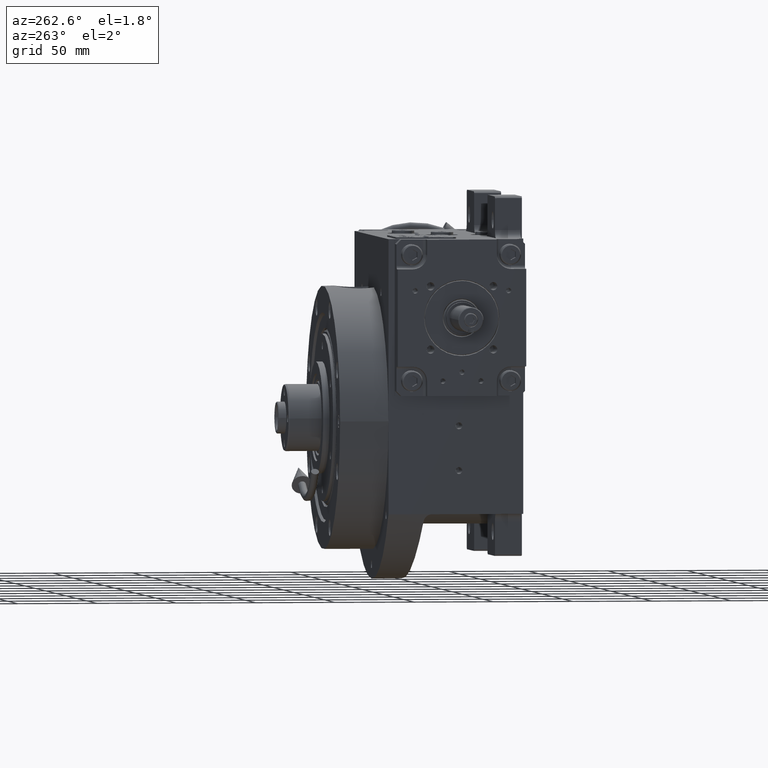
[diagram: clean part render]
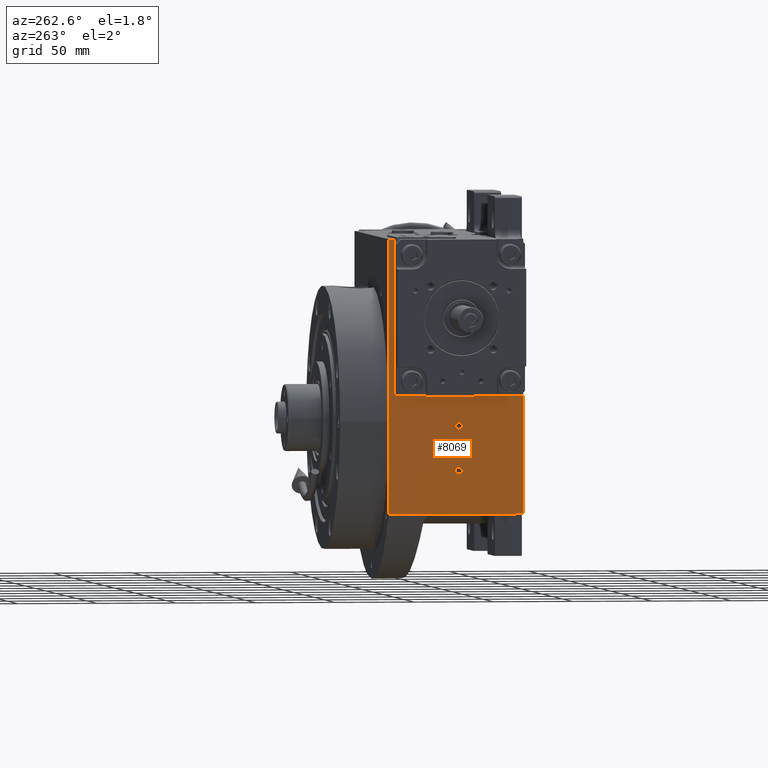
[diagram: same view with one face highlighted and labeled with its STEP entity id]
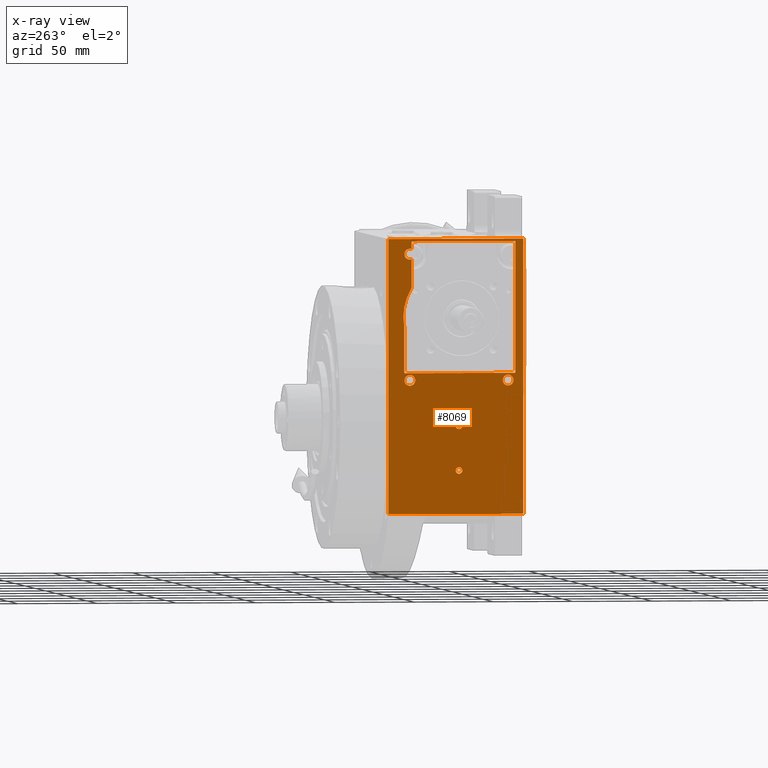
[diagram: x-ray of the same camera — body ghosted, the highlighted face saturated]
A machine part, auxiliary view. The second image highlights one B-rep face of the part: STEP entity #8069.
The next image is the same camera in x-ray: the body ghosted, the highlighted face saturated — about 0% of this face is hidden behind the body in this view.
In plain terms, the highlighted planar face has unit normal (-1, 0, 0).
Its self-contained STEP definition (entity closure, byte-faithful):
#206 = AXIS2_PLACEMENT_3D ( 'NONE', #1415, #22826, #28451 ) ;
#308 = EDGE_CURVE ( 'NONE', #10086, #66945, #552, .T. ) ;
#315 = VERTEX_POINT ( 'NONE', #21269 ) ;
#381 = DIRECTION ( 'NONE',  ( 1.000000000000000000, 0.000000000000000000, 0.000000000000000000 ) ) ;
#552 = LINE ( 'NONE', #17051, #4490 ) ;
#650 = CARTESIAN_POINT ( 'NONE',  ( -82.50001592521240923, 35.09186693465589713, 64.99999953009830733 ) ) ;
#972 = CARTESIAN_POINT ( 'NONE',  ( -82.50000000000000000, -2.100000000000000089, -31.00000000000000000 ) ) ;
#1000 = CARTESIAN_POINT ( 'NONE',  ( -82.50000000000000000, 32.80572396550898873, 77.48509901644604270 ) ) ;
#1415 = CARTESIAN_POINT ( 'NONE',  ( -82.50000000000000000, -31.00000000000000000, 25.50000000000000000 ) ) ;
#1640 = LINE ( 'NONE', #44443, #18783 ) ;
#1911 = EDGE_CURVE ( 'NONE', #4711, #28801, #49567, .T. ) ;
#2588 = CARTESIAN_POINT ( 'NONE',  ( -82.50001592521240923, 35.09186693465589713, 64.99999953009830733 ) ) ;
#2748 = VECTOR ( 'NONE', #33037, 1000.000000000000000 ) ;
#2792 = VERTEX_POINT ( 'NONE', #47744 ) ;
#2962 = VERTEX_POINT ( 'NONE', #28755 ) ;
#3058 = CARTESIAN_POINT ( 'NONE',  ( -82.50000000000000000, 31.55988692801944140, 80.42704711008519780 ) ) ;
#3095 = B_SPLINE_CURVE_WITH_KNOTS ( 'NONE', 3,
 ( #29268, #61583, #45070, #2588 ),
 .UNSPECIFIED., .F., .F.,
 ( 4, 4 ),
 ( 0.9414611157516371565, 1.000000000000000000 ),
 .UNSPECIFIED. ) ;
#3339 = EDGE_LOOP ( 'NONE', ( #8384, #49380 ) ) ;
#3483 = AXIS2_PLACEMENT_3D ( 'NONE', #64433, #9292, #37353 ) ;
#3504 = VECTOR ( 'NONE', #48311, 1000.000000000000000 ) ;
#3514 = AXIS2_PLACEMENT_3D ( 'NONE', #24507, #35057, #4390 ) ;
#4003 = CARTESIAN_POINT ( 'NONE',  ( -82.50000000000000000, 44.50000000000000000, -58.26448317800490173 ) ) ;
#4373 = ORIENTED_EDGE ( 'NONE', *, *, #28653, .T. ) ;
#4390 = DIRECTION ( 'NONE',  ( 0.000000000000000000, -1.000000000000000000, -8.260587980841937794E-16 ) ) ;
#4490 = VECTOR ( 'NONE', #10746, 1000.000000000000000 ) ;
#4695 = CARTESIAN_POINT ( 'NONE',  ( -82.50000000000000000, -1.693856052458800887, 29.93856829000442588 ) ) ;
#4711 = VERTEX_POINT ( 'NONE', #21174 ) ;
#5017 = AXIS2_PLACEMENT_3D ( 'NONE', #49877, #381, #22117 ) ;
#5773 = DIRECTION ( 'NONE',  ( 0.000000000000000000, 1.000000000000000000, 8.260587980841937794E-16 ) ) ;
#6124 = CARTESIAN_POINT ( 'NONE',  ( -82.49999999999998579, 2.536110580017596927, 29.99973809517230094 ) ) ;
#6132 = VECTOR ( 'NONE', #49922, 1000.000000000000000 ) ;
#7179 = CARTESIAN_POINT ( 'NONE',  ( -82.50000000000000000, -40.50000000000000000, -58.26448317800490173 ) ) ;
#7362 = EDGE_CURVE ( 'NONE', #68040, #48719, #42694, .T. ) ;
#7508 = VECTOR ( 'NONE', #46836, 1000.000000000000000 ) ;
#7758 = EDGE_CURVE ( 'NONE', #28801, #34693, #47198, .T. ) ;
#8066 = EDGE_CURVE ( 'NONE', #16380, #64120, #3095, .T. ) ;
#8069 = ADVANCED_FACE ( 'NONE', ( #23652, #19410, #39773, #56652, #8512, #66521 ), #24000, .T. ) ;
#8384 = ORIENTED_EDGE ( 'NONE', *, *, #63031, .T. ) ;
#8512 = FACE_BOUND ( 'NONE', #24115, .T. ) ;
#8627 = ORIENTED_EDGE ( 'NONE', *, *, #308, .T. ) ;
#8959 = VERTEX_POINT ( 'NONE', #61832 ) ;
#9292 = DIRECTION ( 'NONE',  ( 1.000000000000000000, 0.000000000000000000, 0.000000000000000000 ) ) ;
#10086 = VERTEX_POINT ( 'NONE', #42153 ) ;
#10556 = ORIENTED_EDGE ( 'NONE', *, *, #39730, .T. ) ;
#10746 = DIRECTION ( 'NONE',  ( 0.000000000000000000, 1.000000000000000000, 0.000000000000000000 ) ) ;
#10759 = DIRECTION ( 'NONE',  ( 0.000000000000000000, -1.000000000000000000, 0.000000000000000000 ) ) ;
#11323 = CARTESIAN_POINT ( 'NONE',  ( -82.50000000000000000, 31.00000000000000000, 25.50000000000000000 ) ) ;
#11542 = CARTESIAN_POINT ( 'NONE',  ( -82.50000000000002842, 34.19718383853266630, 72.91221821827716099 ) ) ;
#11612 = LINE ( 'NONE', #66059, #36879 ) ;
#12831 = DIRECTION ( 'NONE',  ( 0.000000000000000000, 1.000000000000000000, 0.000000000000000000 ) ) ;
#12930 = EDGE_CURVE ( 'NONE', #28498, #13760, #48740, .T. ) ;
#13134 = CARTESIAN_POINT ( 'NONE',  ( -82.50000000000000000, 0.000000000000000000, -31.00000000000000000 ) ) ;
#13157 = EDGE_CURVE ( 'NONE', #15352, #2962, #21874, .T. ) ;
#13247 = EDGE_CURVE ( 'NONE', #2792, #16380, #38994, .T. ) ;
#13356 = EDGE_LOOP ( 'NONE', ( #60456, #33057, #8627, #44204, #15165 ) ) ;
#13760 = VERTEX_POINT ( 'NONE', #41943 ) ;
#13847 = ORIENTED_EDGE ( 'NONE', *, *, #30304, .T. ) ;
#14003 = AXIS2_PLACEMENT_3D ( 'NONE', #55620, #65810, #39445 ) ;
#14348 = CARTESIAN_POINT ( 'NONE',  ( -82.50000000000000000, 34.39999999999999858, 104.5000000000000000 ) ) ;
#14352 = EDGE_CURVE ( 'NONE', #53867, #42424, #27584, .T. ) ;
#14442 = LINE ( 'NONE', #26360, #50873 ) ;
#14543 = ORIENTED_EDGE ( 'NONE', *, *, #20760, .T. ) ;
#14968 = ORIENTED_EDGE ( 'NONE', *, *, #8066, .T. ) ;
#15165 = ORIENTED_EDGE ( 'NONE', *, *, #36271, .T. ) ;
#15352 = VERTEX_POINT ( 'NONE', #61356 ) ;
#15755 = CARTESIAN_POINT ( 'NONE',  ( -82.50000000000000000, 29.99999999930853178, -58.26448317829031964 ) ) ;
#16008 = CARTESIAN_POINT ( 'NONE',  ( -82.50000000000000000, 29.99999999998061995, 107.7496153618484129 ) ) ;
#16248 = DIRECTION ( 'NONE',  ( 0.000000000000000000, -1.000000000000000000, 0.000000000000000000 ) ) ;
#16380 = VERTEX_POINT ( 'NONE', #41351 ) ;
#16440 = LINE ( 'NONE', #15755, #44749 ) ;
#16801 = CARTESIAN_POINT ( 'NONE',  ( -82.50000000000002842, 35.08975819402696317, 66.61074919764907065 ) ) ;
#17051 = CARTESIAN_POINT ( 'NONE',  ( -82.50000000000000000, -40.50000000000000000, 114.0000000000000000 ) ) ;
#17642 = EDGE_LOOP ( 'NONE', ( #29881, #40994 ) ) ;
#17765 = DIRECTION ( 'NONE',  ( 0.000000000000000000, 4.048429820936533247E-12, 1.000000000000000000 ) ) ;
#18578 = VERTEX_POINT ( 'NONE', #972 ) ;
#18783 = VECTOR ( 'NONE', #17765, 1000.000000000000000 ) ;
#18873 = CARTESIAN_POINT ( 'NONE',  ( -82.49999999999998579, 32.51271328310705400, 78.22921750625796733 ) ) ;
#19237 = CARTESIAN_POINT ( 'NONE',  ( -82.49999999999994316, 30.00000000867834160, 83.20545253233312621 ) ) ;
#19410 = FACE_BOUND ( 'NONE', #17642, .T. ) ;
#19767 = B_SPLINE_CURVE_WITH_KNOTS ( 'NONE', 3,
 ( #64404, #4695, #26797, #48220 ),
 .UNSPECIFIED., .F., .F.,
 ( 4, 4 ),
 ( 0.4769927843481003849, 0.4999998433994479186 ),
 .UNSPECIFIED. ) ;
#20760 = EDGE_CURVE ( 'NONE', #41714, #2792, #23997, .T. ) ;
#21174 = CARTESIAN_POINT ( 'NONE',  ( -82.50000000000000000, 29.99999999995430500, 101.2503846381596730 ) ) ;
#21269 = CARTESIAN_POINT ( 'NONE',  ( -82.49999999999994316, -35.50000000000001421, 29.99999999999999289 ) ) ;
#21325 = DIRECTION ( 'NONE',  ( 0.000000000000000000, 1.000000000000000000, 4.081702296416015997E-15 ) ) ;
#21847 = B_SPLINE_CURVE_WITH_KNOTS ( 'NONE', 3,
 ( #650, #16801, #43462, #38213, #59692, #54394, #11542, #32967, #49089, #1000, #18873, #3058, #34002, #19237 ),
 .UNSPECIFIED., .F., .F.,
 ( 4, 1, 2, 2, 1, 2, 2, 4 ),
 ( 0.000000000000000000, 0.04341200056767118010, 0.05426500070958887451, 0.06511800085150658279, 0.08682400113534233244, 0.1085300014191780960, 0.1302360017030138595, 0.1736480022706850257 ),
 .UNSPECIFIED. ) ;
#21874 = CIRCLE ( 'NONE', #14003, 3.400000000000000355 ) ;
#22009 = CARTESIAN_POINT ( 'NONE',  ( -82.50000000000000000, 31.00000000000000000, 25.50000000000000000 ) ) ;
#22117 = DIRECTION ( 'NONE',  ( 0.000000000000000000, 1.000000000000000000, 0.000000000000000000 ) ) ;
#22488 = CARTESIAN_POINT ( 'NONE',  ( -82.50000000000000000, 44.50000000000000000, -58.26448317800490173 ) ) ;
#22826 = DIRECTION ( 'NONE',  ( 1.000000000000000000, 0.000000000000000000, 0.000000000000000000 ) ) ;
#23652 = FACE_BOUND ( 'NONE', #3339, .T. ) ;
#23997 = LINE ( 'NONE', #61937, #32429 ) ;
#24000 = PLANE ( 'NONE',  #39780 ) ;
#24115 = EDGE_LOOP ( 'NONE', ( #58184, #44331, #33962, #66261, #13847, #56904, #32713, #62430, #41115, #10556, #14543, #26332, #14968 ) ) ;
#24507 = CARTESIAN_POINT ( 'NONE',  ( -82.50000000000000000, 0.000000000000000000, -3.000000000000000000 ) ) ;
#24908 = AXIS2_PLACEMENT_3D ( 'NONE', #46965, #69099, #42340 ) ;
#25566 = VERTEX_POINT ( 'NONE', #67761 ) ;
#26330 = VERTEX_POINT ( 'NONE', #7179 ) ;
#26332 = ORIENTED_EDGE ( 'NONE', *, *, #13247, .T. ) ;
#26360 = CARTESIAN_POINT ( 'NONE',  ( -82.50000000000000000, -40.50000000000000711, 29.99999999999997868 ) ) ;
#26797 = CARTESIAN_POINT ( 'NONE',  ( -82.50000000000000000, -0.8484797869458211572, 29.90810260807950627 ) ) ;
#26850 = CARTESIAN_POINT ( 'NONE',  ( -82.49999999999998579, -2.287762938363496192E-09, 29.90816376190140602 ) ) ;
#27584 = CIRCLE ( 'NONE', #66870, 3.400000000000000355 ) ;
#27903 = CARTESIAN_POINT ( 'NONE',  ( -82.49999999999998579, -2.287762938363496192E-09, 29.90816376190140602 ) ) ;
#27932 = LINE ( 'NONE', #48987, #3504 ) ;
#28198 = CARTESIAN_POINT ( 'NONE',  ( -82.50000000000000000, 44.50000000000000000, -58.26448317800490173 ) ) ;
#28451 = DIRECTION ( 'NONE',  ( 0.000000000000000000, 1.000000000000000000, 2.040851148208007998E-15 ) ) ;
#28498 = VERTEX_POINT ( 'NONE', #30935 ) ;
#28653 = EDGE_CURVE ( 'NONE', #2962, #15352, #55159, .T. ) ;
#28755 = CARTESIAN_POINT ( 'NONE',  ( -82.50000000000000000, -27.59999999999999787, 25.50000000000000000 ) ) ;
#28801 = VERTEX_POINT ( 'NONE', #14348 ) ;
#28834 = CARTESIAN_POINT ( 'NONE',  ( -82.50000000000000000, 34.49999999999999289, -58.26448317800490173 ) ) ;
#29268 = CARTESIAN_POINT ( 'NONE',  ( -82.49999999999998579, 34.49999998246808275, 58.58309560405079708 ) ) ;
#29474 = EDGE_CURVE ( 'NONE', #37697, #31930, #19767, .T. ) ;
#29881 = ORIENTED_EDGE ( 'NONE', *, *, #12930, .T. ) ;
#30304 = EDGE_CURVE ( 'NONE', #34693, #68040, #1640, .T. ) ;
#30935 = CARTESIAN_POINT ( 'NONE',  ( -82.50000000000000000, 2.100000000000000089, -3.000000000000000000 ) ) ;
#31227 = DIRECTION ( 'NONE',  ( -1.000000000000000000, 0.000000000000000000, 0.000000000000000000 ) ) ;
#31930 = VERTEX_POINT ( 'NONE', #27903 ) ;
#32100 = DIRECTION ( 'NONE',  ( 1.000000000000000000, 0.000000000000000000, 0.000000000000000000 ) ) ;
#32203 = VERTEX_POINT ( 'NONE', #68285 ) ;
#32429 = VECTOR ( 'NONE', #39770, 1000.000000000000000 ) ;
#32713 = ORIENTED_EDGE ( 'NONE', *, *, #36942, .T. ) ;
#32967 = CARTESIAN_POINT ( 'NONE',  ( -82.50000000000000000, 33.81987246492566612, 74.46412064053514257 ) ) ;
#33037 = DIRECTION ( 'NONE',  ( 0.000000000000000000, 0.000000000000000000, 1.000000000000000000 ) ) ;
#33047 = CIRCLE ( 'NONE', #5017, 2.100000000000000089 ) ;
#33057 = ORIENTED_EDGE ( 'NONE', *, *, #35921, .T. ) ;
#33732 = CIRCLE ( 'NONE', #49479, 3.400000000000000355 ) ;
#33962 = ORIENTED_EDGE ( 'NONE', *, *, #1911, .T. ) ;
#34002 = CARTESIAN_POINT ( 'NONE',  ( -82.49999999999998579, 30.82821280402489705, 81.84160544040402385 ) ) ;
#34693 = VERTEX_POINT ( 'NONE', #16008 ) ;
#35057 = DIRECTION ( 'NONE',  ( 1.000000000000000000, 0.000000000000000000, 0.000000000000000000 ) ) ;
#35921 = EDGE_CURVE ( 'NONE', #26330, #10086, #27932, .T. ) ;
#36146 = ORIENTED_EDGE ( 'NONE', *, *, #41040, .T. ) ;
#36271 = EDGE_CURVE ( 'NONE', #62559, #25566, #57412, .T. ) ;
#36393 = CARTESIAN_POINT ( 'NONE',  ( -82.50000000000000000, -40.50000000000000000, 112.4999999999999005 ) ) ;
#36879 = VECTOR ( 'NONE', #44573, 1000.000000000000000 ) ;
#36942 = EDGE_CURVE ( 'NONE', #48719, #315, #11612, .T. ) ;
#37223 = EDGE_CURVE ( 'NONE', #8959, #4711, #16440, .T. ) ;
#37353 = DIRECTION ( 'NONE',  ( 0.000000000000000000, 1.000000000000000000, 8.163404592832031993E-15 ) ) ;
#37566 = ORIENTED_EDGE ( 'NONE', *, *, #14352, .T. ) ;
#37697 = VERTEX_POINT ( 'NONE', #64747 ) ;
#38213 = CARTESIAN_POINT ( 'NONE',  ( -82.50000000000000000, 34.64992140257587749, 70.56373136102871513 ) ) ;
#38994 = LINE ( 'NONE', #28834, #6132 ) ;
#39445 = DIRECTION ( 'NONE',  ( 0.000000000000000000, -1.000000000000000000, 2.040851148208007998E-15 ) ) ;
#39515 = EDGE_CURVE ( 'NONE', #13760, #28498, #64085, .T. ) ;
#39730 = EDGE_CURVE ( 'NONE', #31930, #41714, #55695, .T. ) ;
#39770 = DIRECTION ( 'NONE',  ( -0.000000000000000000, 1.000000000000000000, 9.912705577010326782E-17 ) ) ;
#39773 = FACE_BOUND ( 'NONE', #50868, .T. ) ;
#39780 = AXIS2_PLACEMENT_3D ( 'NONE', #45402, #31227, #57932 ) ;
#40753 = VECTOR ( 'NONE', #10759, 1000.000000000000000 ) ;
#40764 = CARTESIAN_POINT ( 'NONE',  ( -82.49999999999998579, 2.536110580017596927, 29.99973809517230094 ) ) ;
#40994 = ORIENTED_EDGE ( 'NONE', *, *, #39515, .T. ) ;
#41040 = EDGE_CURVE ( 'NONE', #42424, #53867, #33732, .T. ) ;
#41115 = ORIENTED_EDGE ( 'NONE', *, *, #29474, .T. ) ;
#41351 = CARTESIAN_POINT ( 'NONE',  ( -82.49999999999998579, 34.49999998246808275, 58.58309560405079708 ) ) ;
#41714 = VERTEX_POINT ( 'NONE', #40764 ) ;
#41943 = CARTESIAN_POINT ( 'NONE',  ( -82.50000000000000000, -2.100000000000000089, -3.000000000000000000 ) ) ;
#42153 = CARTESIAN_POINT ( 'NONE',  ( -82.50000000000000000, -40.50000000000000000, 114.0000000000000000 ) ) ;
#42340 = DIRECTION ( 'NONE',  ( 0.000000000000000000, -1.000000000000000000, 8.163404592832031993E-15 ) ) ;
#42424 = VERTEX_POINT ( 'NONE', #48728 ) ;
#42694 = LINE ( 'NONE', #36393, #40753 ) ;
#43462 = CARTESIAN_POINT ( 'NONE',  ( -82.50000000000000000, 34.95338893667103264, 68.60145005448170252 ) ) ;
#44204 = ORIENTED_EDGE ( 'NONE', *, *, #44720, .F. ) ;
#44331 = ORIENTED_EDGE ( 'NONE', *, *, #37223, .T. ) ;
#44366 = CARTESIAN_POINT ( 'NONE',  ( -82.50000000000000000, 1.693755086030804602, 29.93853868039097321 ) ) ;
#44443 = CARTESIAN_POINT ( 'NONE',  ( -82.50000000000000000, 29.99999999930853178, -58.26448317829031964 ) ) ;
#44573 = DIRECTION ( 'NONE',  ( 0.000000000000000000, 0.000000000000000000, -1.000000000000000000 ) ) ;
#44720 = EDGE_CURVE ( 'NONE', #62559, #66945, #59050, .T. ) ;
#44749 = VECTOR ( 'NONE', #47028, 1000.000000000000000 ) ;
#45070 = CARTESIAN_POINT ( 'NONE',  ( -82.50000000000000000, 35.08908161204394105, 62.82758922897531306 ) ) ;
#45097 = CARTESIAN_POINT ( 'NONE',  ( -82.50000000000000000, 44.50000000000000000, 114.0000000000000000 ) ) ;
#45402 = CARTESIAN_POINT ( 'NONE',  ( -82.50000000000000000, -40.50000000000000000, -58.26448317800490173 ) ) ;
#46645 = EDGE_CURVE ( 'NONE', #64120, #8959, #21847, .T. ) ;
#46836 = DIRECTION ( 'NONE',  ( 0.000000000000000000, -1.000000000000000000, 3.199570353973790170E-13 ) ) ;
#46965 = CARTESIAN_POINT ( 'NONE',  ( -82.50000000000000000, 31.00000000000000000, 104.5000000000000000 ) ) ;
#47028 = DIRECTION ( 'NONE',  ( 0.000000000000000000, 4.048429820936533247E-12, 1.000000000000000000 ) ) ;
#47198 = CIRCLE ( 'NONE', #3483, 3.400000000000000355 ) ;
#47304 = ORIENTED_EDGE ( 'NONE', *, *, #13157, .T. ) ;
#47744 = CARTESIAN_POINT ( 'NONE',  ( -82.49999999999994316, 34.49999999999999289, 30.00000000000000000 ) ) ;
#48220 = CARTESIAN_POINT ( 'NONE',  ( -82.49999999999998579, -2.287762938363496192E-09, 29.90816376190140602 ) ) ;
#48269 = CARTESIAN_POINT ( 'NONE',  ( -82.50000000000000000, 0.8486577178067211680, 29.90807645585264751 ) ) ;
#48311 = DIRECTION ( 'NONE',  ( 0.000000000000000000, 0.000000000000000000, 1.000000000000000000 ) ) ;
#48719 = VERTEX_POINT ( 'NONE', #62300 ) ;
#48728 = CARTESIAN_POINT ( 'NONE',  ( -82.50000000000000000, 34.39999999999999858, 25.50000000000000000 ) ) ;
#48740 = CIRCLE ( 'NONE', #64502, 2.100000000000000089 ) ;
#48987 = CARTESIAN_POINT ( 'NONE',  ( -82.50000000000000000, -40.50000000000000000, -58.26448317800490173 ) ) ;
#49089 = CARTESIAN_POINT ( 'NONE',  ( -82.50000000000000000, 33.33875079043759371, 75.98289247535112167 ) ) ;
#49380 = ORIENTED_EDGE ( 'NONE', *, *, #60975, .T. ) ;
#49479 = AXIS2_PLACEMENT_3D ( 'NONE', #22009, #64883, #21325 ) ;
#49567 = CIRCLE ( 'NONE', #24908, 3.400000000000000355 ) ;
#49877 = CARTESIAN_POINT ( 'NONE',  ( -82.50000000000000000, 2.220446049250315053E-16, -31.00000000000000000 ) ) ;
#49922 = DIRECTION ( 'NONE',  ( 0.000000000000000000, 0.000000000000000000, 1.000000000000000000 ) ) ;
#50868 = EDGE_LOOP ( 'NONE', ( #4373, #47304 ) ) ;
#50873 = VECTOR ( 'NONE', #63951, 1000.000000000000000 ) ;
#53867 = VERTEX_POINT ( 'NONE', #67454 ) ;
#53892 = CARTESIAN_POINT ( 'NONE',  ( -82.50000000000000000, 0.000000000000000000, -3.000000000000000000 ) ) ;
#54394 = CARTESIAN_POINT ( 'NONE',  ( -82.50000000000001421, 34.44123850590754188, 71.73586743129293097 ) ) ;
#54513 = DIRECTION ( 'NONE',  ( 1.000000000000000000, 0.000000000000000000, 0.000000000000000000 ) ) ;
#54544 = EDGE_CURVE ( 'NONE', #26330, #25566, #60613, .T. ) ;
#55040 = CARTESIAN_POINT ( 'NONE',  ( -82.49999999999994316, 29.99999999999985079, 112.4999999999999005 ) ) ;
#55159 = CIRCLE ( 'NONE', #206, 3.400000000000000355 ) ;
#55426 = AXIS2_PLACEMENT_3D ( 'NONE', #13134, #67603, #55644 ) ;
#55620 = CARTESIAN_POINT ( 'NONE',  ( -82.50000000000000000, -31.00000000000000000, 25.50000000000000000 ) ) ;
#55644 = DIRECTION ( 'NONE',  ( 0.000000000000000000, -1.000000000000000000, -3.304235192336775117E-15 ) ) ;
#55695 = B_SPLINE_CURVE_WITH_KNOTS ( 'NONE', 3,
 ( #26850, #48269, #44366, #6124 ),
 .UNSPECIFIED., .F., .F.,
 ( 4, 4 ),
 ( 0.4999998433994479186, 0.5230117272812365714 ),
 .UNSPECIFIED. ) ;
#56652 = FACE_BOUND ( 'NONE', #56673, .T. ) ;
#56673 = EDGE_LOOP ( 'NONE', ( #36146, #37566 ) ) ;
#56904 = ORIENTED_EDGE ( 'NONE', *, *, #7362, .T. ) ;
#57412 = LINE ( 'NONE', #4003, #7508 ) ;
#57932 = DIRECTION ( 'NONE',  ( 0.000000000000000000, 0.000000000000000000, 1.000000000000000000 ) ) ;
#58184 = ORIENTED_EDGE ( 'NONE', *, *, #46645, .T. ) ;
#59050 = LINE ( 'NONE', #22488, #2748 ) ;
#59692 = CARTESIAN_POINT ( 'NONE',  ( -82.50000000000000000, 34.51516652679867292, 71.34637031962462572 ) ) ;
#60456 = ORIENTED_EDGE ( 'NONE', *, *, #54544, .F. ) ;
#60613 = LINE ( 'NONE', #60971, #63796 ) ;
#60971 = CARTESIAN_POINT ( 'NONE',  ( -82.50000000000000000, -40.50000000000000000, -58.26448317800490173 ) ) ;
#60975 = EDGE_CURVE ( 'NONE', #18578, #32203, #61058, .T. ) ;
#61058 = CIRCLE ( 'NONE', #55426, 2.100000000000000089 ) ;
#61356 = CARTESIAN_POINT ( 'NONE',  ( -82.50000000000000000, -34.39999999999999858, 25.50000000000000000 ) ) ;
#61491 = EDGE_CURVE ( 'NONE', #315, #37697, #14442, .T. ) ;
#61583 = CARTESIAN_POINT ( 'NONE',  ( -82.50000000000000000, 34.89175422446672314, 60.68862570203076956 ) ) ;
#61832 = CARTESIAN_POINT ( 'NONE',  ( -82.49999999999994316, 30.00000000867834160, 83.20545253233312621 ) ) ;
#61937 = CARTESIAN_POINT ( 'NONE',  ( -82.49999999999994316, 34.49999999999999289, 30.00000000000000000 ) ) ;
#62300 = CARTESIAN_POINT ( 'NONE',  ( -82.49999999999994316, -35.50000000000001421, 112.4999999999999005 ) ) ;
#62430 = ORIENTED_EDGE ( 'NONE', *, *, #61491, .T. ) ;
#62559 = VERTEX_POINT ( 'NONE', #28198 ) ;
#63031 = EDGE_CURVE ( 'NONE', #32203, #18578, #33047, .T. ) ;
#63796 = VECTOR ( 'NONE', #12831, 1000.000000000000000 ) ;
#63951 = DIRECTION ( 'NONE',  ( 0.000000000000000000, 1.000000000000000000, 9.912705577010326782E-17 ) ) ;
#64085 = CIRCLE ( 'NONE', #3514, 2.100000000000000089 ) ;
#64120 = VERTEX_POINT ( 'NONE', #66468 ) ;
#64404 = CARTESIAN_POINT ( 'NONE',  ( -82.49999999999998579, -2.536110197828666646, 29.99974328708439941 ) ) ;
#64433 = CARTESIAN_POINT ( 'NONE',  ( -82.50000000000000000, 31.00000000000000000, 104.5000000000000000 ) ) ;
#64502 = AXIS2_PLACEMENT_3D ( 'NONE', #53892, #32100, #5773 ) ;
#64747 = CARTESIAN_POINT ( 'NONE',  ( -82.49999999999998579, -2.536110197828666646, 29.99974328708439941 ) ) ;
#64883 = DIRECTION ( 'NONE',  ( 1.000000000000000000, 0.000000000000000000, 0.000000000000000000 ) ) ;
#65810 = DIRECTION ( 'NONE',  ( 1.000000000000000000, 0.000000000000000000, 0.000000000000000000 ) ) ;
#66059 = CARTESIAN_POINT ( 'NONE',  ( -82.50000000000000000, -35.50000000000001421, -58.26448317800490173 ) ) ;
#66261 = ORIENTED_EDGE ( 'NONE', *, *, #7758, .T. ) ;
#66468 = CARTESIAN_POINT ( 'NONE',  ( -82.50001592521240923, 35.09186693465589713, 64.99999953009830733 ) ) ;
#66521 = FACE_OUTER_BOUND ( 'NONE', #13356, .T. ) ;
#66870 = AXIS2_PLACEMENT_3D ( 'NONE', #11323, #54513, #16248 ) ;
#66945 = VERTEX_POINT ( 'NONE', #45097 ) ;
#67454 = CARTESIAN_POINT ( 'NONE',  ( -82.50000000000000000, 27.59999999999999787, 25.50000000000000000 ) ) ;
#67603 = DIRECTION ( 'NONE',  ( 1.000000000000000000, 0.000000000000000000, 0.000000000000000000 ) ) ;
#67761 = CARTESIAN_POINT ( 'NONE',  ( -82.50000025288930772, 16.91834889469715009, -58.26448317800269905 ) ) ;
#68040 = VERTEX_POINT ( 'NONE', #55040 ) ;
#68285 = CARTESIAN_POINT ( 'NONE',  ( -82.50000000000000000, 2.100000000000000089, -31.00000000000000000 ) ) ;
#69099 = DIRECTION ( 'NONE',  ( 1.000000000000000000, 0.000000000000000000, 0.000000000000000000 ) ) ;